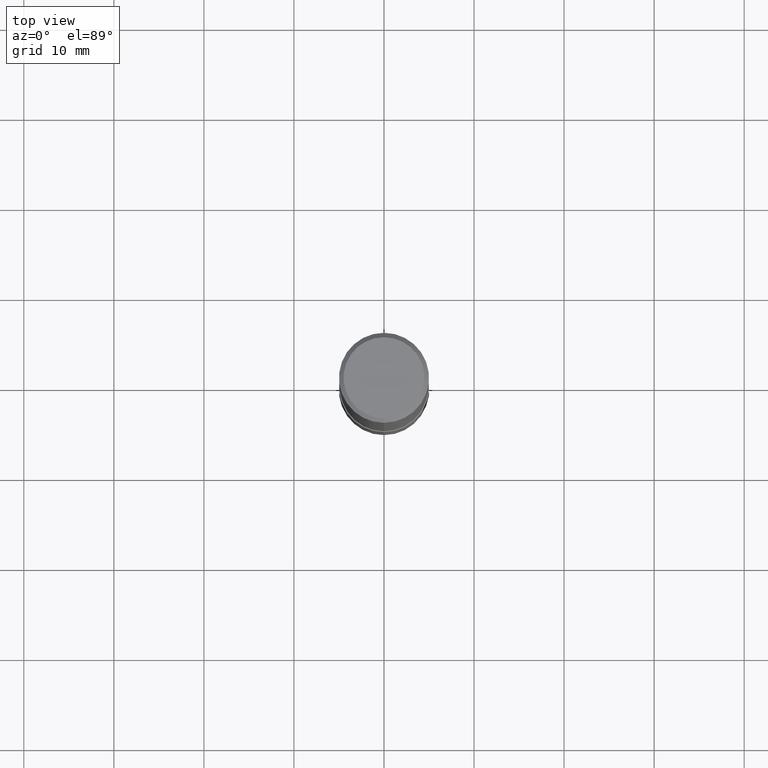
[diagram: clean part render]
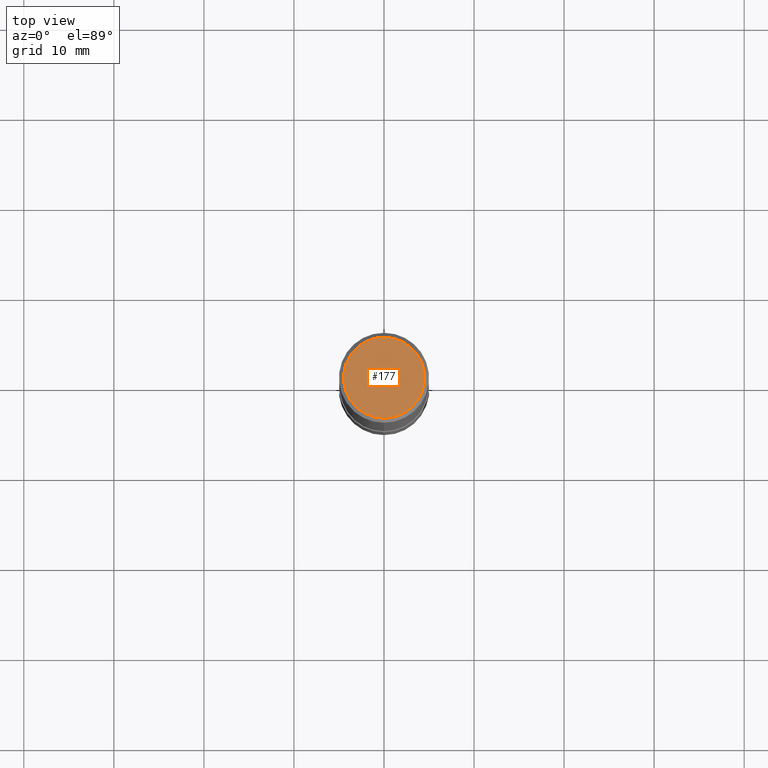
[diagram: same view with one face highlighted and labeled with its STEP entity id]
A machine part, top view. The second image highlights one B-rep face of the part: STEP entity #177.
In plain terms, the highlighted planar face has unit normal (-0, 0, 1).
Its self-contained STEP definition (entity closure, byte-faithful):
#177=ADVANCED_FACE('',(#371),#372,.T.);
#205=VERTEX_POINT('',#402);
#213=EDGE_CURVE('',#225,#205,#412,.T.);
#225=VERTEX_POINT('',#425);
#281=EDGE_CURVE('',#205,#225,#492,.T.);
#371=FACE_OUTER_BOUND('',#592,.T.);
#372=PLANE('',#593);
#402=CARTESIAN_POINT('',(5.5107285922007E-016,-4.5,0.0));
#412=CIRCLE('',#651,4.5);
#425=CARTESIAN_POINT('',(0.0,4.5,0.0));
#492=CIRCLE('',#744,4.5);
#592=EDGE_LOOP('',(#835,#836));
#593=AXIS2_PLACEMENT_3D('',#837,#838,#839);
#651=AXIS2_PLACEMENT_3D('',#884,#885,#886);
#744=AXIS2_PLACEMENT_3D('',#991,#992,#993);
#835=ORIENTED_EDGE('',*,*,#213,.F.);
#836=ORIENTED_EDGE('',*,*,#281,.F.);
#837=CARTESIAN_POINT('',(0.0,2.25,0.0));
#838=DIRECTION('',(-0.0,0.0,1.0));
#839=DIRECTION('',(0.0,-1.0,0.0));
#884=CARTESIAN_POINT('',(0.0,0.0,0.0));
#885=DIRECTION('',(0.0,0.0,-1.0));
#886=DIRECTION('',(0.0,1.0,0.0));
#991=CARTESIAN_POINT('',(0.0,0.0,0.0));
#992=DIRECTION('',(0.0,0.0,-1.0));
#993=DIRECTION('',(0.0,1.0,0.0));